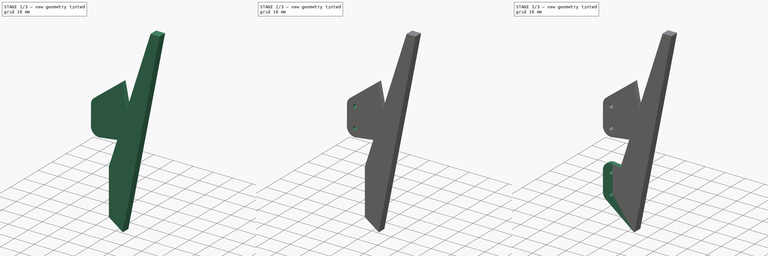
[diagram: build sequence overview — one tinted view per stage of 3, left to right]
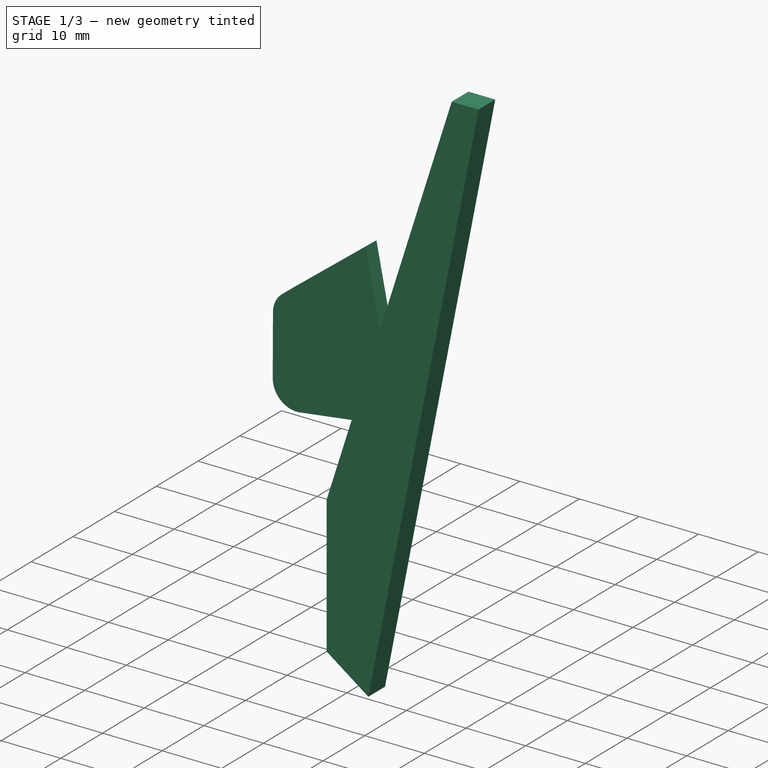
[diagram: stage 1 of 3 — iso view after this stage's code; geometry added in this stage tinted green]
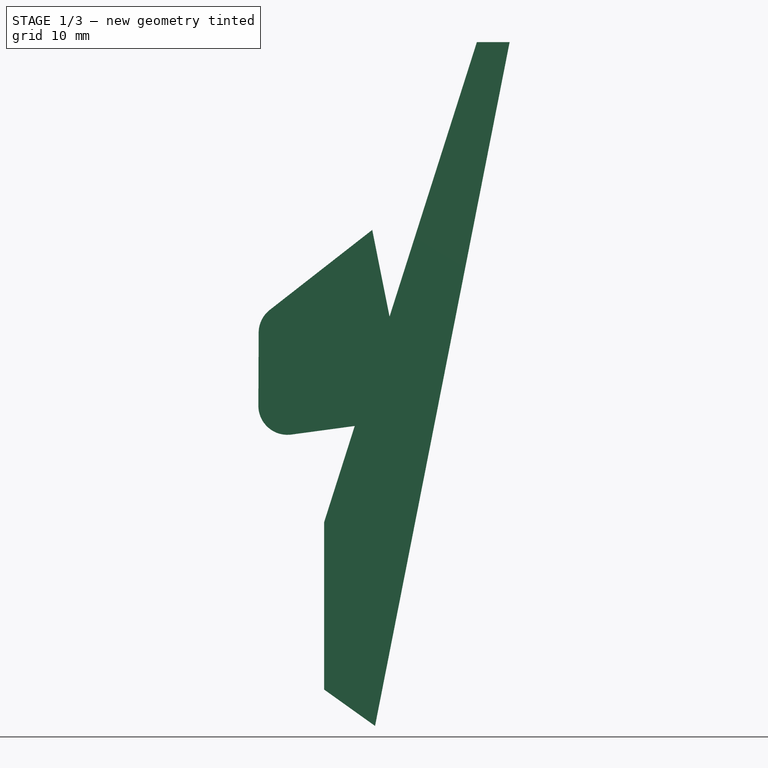
[diagram: stage 1 of 3 — front view after this stage's code; geometry added in this stage tinted green]
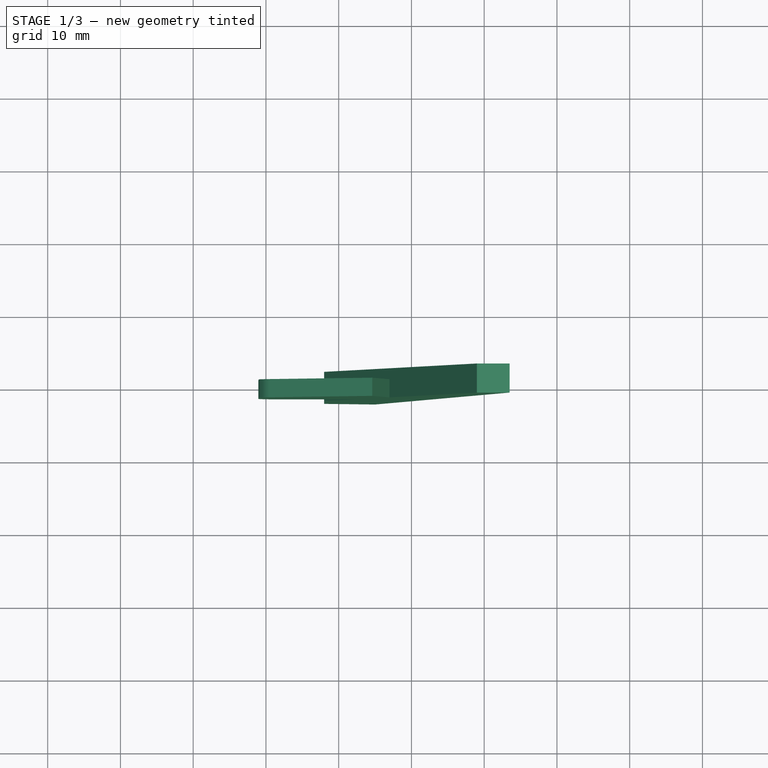
[diagram: stage 1 of 3 — top view after this stage's code; geometry added in this stage tinted green]
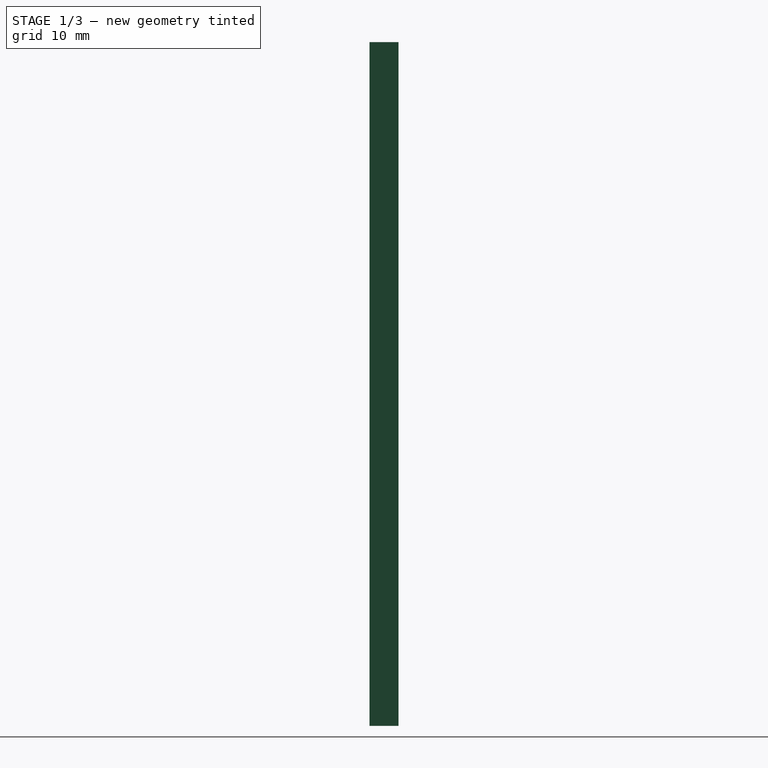
[diagram: stage 1 of 3 — right view after this stage's code; geometry added in this stage tinted green]
FCSTD DOCUMENT  (FreeCAD 0.14R3700 (Git))
Label: patte centrale b
License: CC-BY 3.0
LicenseURL: http://creativecommons.org/licenses/by/3.0/
objects: Part::Feature×10, Sketcher::SketchObject×6, PartDesign::Pad×3, PartDesign::Pocket×3, PartDesign::Fillet×2
note: 30 computed .brp shape members not serialized (recipe doc carries the construction recipe); baked Part::Feature solids carry a one-line shape summary decoded from their .brp

FEATURE [PartDesign::Pad] Pad005
  Length = 2.5
  Length2 = 100
  Placement = pos=(43,-2,9) rot=(-1,0,0;1.5708rad)
  Sketch = -> Sketch008
  Type = 0
FEATURE [Part::Feature] Fillet_solid  label="Fillet (Solid)"
  Placement = pos=(43,-2,9) rot=(-1,0,0;1.5708rad)
  shape: bbox 21.06 x 2.5 x 28.65 mm, 18 faces (baked)
FEATURE [Part::Feature] Fillet001_solid  label="Fillet001 (Solid)"
  Placement = pos=(43,-2,9) rot=(-1,0,0;1.5708rad)
  shape: bbox 21.16 x 2.5 x 28.5 mm, 18 faces (baked)
FEATURE [Part::Feature] Fillet_solid001  label="Fillet (Solid)001"
  Placement = pos=(43,-2,9) rot=(-1,0,0;1.5708rad)
  shape: bbox 21.06 x 2.5 x 28.65 mm, 18 faces (baked)
FEATURE [Part::Feature] Fillet001_solid001  label="Fillet001 (Solid)001"
  Placement = pos=(43,-2,9) rot=(-1,0,0;1.5708rad)
  shape: bbox 21.16 x 2.5 x 28.5 mm, 18 faces (baked)
FEATURE [Part::Feature] Fillet002
  Placement = pos=(43,-2,9) rot=(-1,0,0;1.5708rad)
  shape: bbox 21.06 x 2.5 x 28.65 mm, 18 faces (baked)
FEATURE [Part::Feature] Fillet001001  label="Fillet003"
  Placement = pos=(43,-2,9) rot=(-1,0,0;1.5708rad)
  shape: bbox 21.16 x 2.5 x 28.5 mm, 18 faces (baked)
FEATURE [Part::Feature] Fillet_solid002  label="Fillet (Solid)002"
  Placement = pos=(43,-2,9) rot=(-1,0,0;1.5708rad)
  shape: bbox 21.06 x 2.5 x 28.65 mm, 18 faces (baked)
FEATURE [Part::Feature] Fillet001_solid002  label="Fillet001 (Solid)002"
  Placement = pos=(43,-2,9) rot=(-1,0,0;1.5708rad)
  shape: bbox 21.16 x 2.5 x 28.5 mm, 18 faces (baked)
FEATURE [Part::Feature] Fillet_solid001001  label="Fillet (Solid)003"
  Placement = pos=(43,-2,9) rot=(-1,0,0;1.5708rad)
  shape: bbox 21.06 x 2.5 x 28.65 mm, 18 faces (baked)
FEATURE [Part::Feature] Fillet001_solid001001  label="Fillet001 (Solid)003"
  Placement = pos=(43,-2,9) rot=(-1,0,0;1.5708rad)
  shape: bbox 21.16 x 2.5 x 28.5 mm, 18 faces (baked)
FEATURE [Sketcher::SketchObject] Sketch013
  Placement = pos=(43,-2,9) rot=(-1,0,0;1.5708rad)
  sketch-geometry (5):
    g0: LineSegment StartX=65 StartY=29 StartZ=0 EndX=65 EndY=6 EndZ=0
    g1: LineSegment StartX=65 StartY=6 StartZ=0 EndX=86 EndY=-60 EndZ=0
    g2: LineSegment StartX=86 StartY=-60 StartZ=0 EndX=90.5 EndY=-60 EndZ=0
    g3: LineSegment StartX=90.5 StartY=-60 StartZ=0 EndX=72 EndY=34 EndZ=0
    g4: LineSegment StartX=72 StartY=34 StartZ=0 EndX=65 EndY=29 EndZ=0
  constraints (15):
    c: Coincident(g0,g1)
    c: Coincident(g1,g2)
    c: Coincident(g2,g3)
    c: Coincident(g3,g4)
    c: Coincident(g4,g0)
    c: Horizontal(g2)
    c: DistanceY(g-1,g2) = -60
    c: DistanceY(g-1,g0) = 29
    c: DistanceY(g-1,g3) = 34
    c: DistanceX(g2) = 4.5
    c: DistanceY(g1) = -66
    c: Vertical(g0)
    c: DistanceX(g-1,g3) = 72
    c: DistanceX(g-1,g0) = 65
    c: DistanceX(g-1,g1) = 86
FEATURE [PartDesign::Pad] Pad
  Length = 4
  Length2 = 100
  Placement = pos=(43,-2,9) rot=(-1,0,0;1.5708rad)
  Sketch = -> Sketch013
  Type = 0
FEATURE [Sketcher::SketchObject] Sketch
  Placement = pos=(43,2,9) rot=(-1,0,0;1.5708rad)
  Support = -> Pad [Face7]
  sketch-geometry (4):
    g0: ArcOfCircle CenterX=72 CenterY=3 CenterZ=0 NormalX=0 NormalY=0 NormalZ=1 Radius=4 StartAngle=0.295363 EndAngle=3.3585
    g1: ArcOfCircle CenterX=85 CenterY=-47 CenterZ=0 NormalX=0 NormalY=0 NormalZ=1 Radius=1.5 StartAngle=3.02034 EndAngle=6.96672
    g2: LineSegment StartX=68.0937 StartY=2.13914 StartZ=0 EndX=83.511 EndY=-46.8186 EndZ=0
    g3: LineSegment StartX=75.8268 StartY=4.16435 StartZ=0 EndX=86.163 EndY=-46.0527 EndZ=0
  constraints (11):
    c: Radius(g0) = 4
    c: Radius(g1) = 1.5
    c: Coincident(g2,g0)
    c: Coincident(g3,g0)
    c: Coincident(g2,g1)
    c: Coincident(g3,g1)
    c: DistanceY(g-1,g0) = 3
    c: DistanceX(g-1,g0) = 72
    c: DistanceY(g-1,g1) = -47
    c: DistanceX(g-1,g1) = 85
    c: Coincident(g0,g3)
FEATURE [PartDesign::Pocket] Pocket
  Length = 0.5
  Placement = pos=(43,-2,9) rot=(-1,0,0;1.5708rad)
  Sketch = -> Sketch
  Type = 0
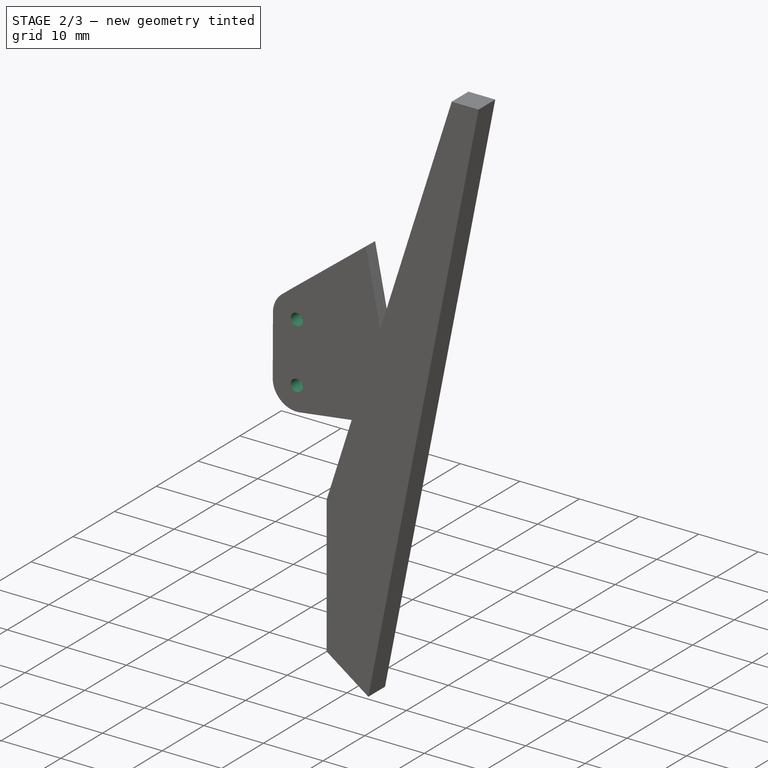
[diagram: stage 2 of 3 — iso view after this stage's code; geometry added in this stage tinted green]
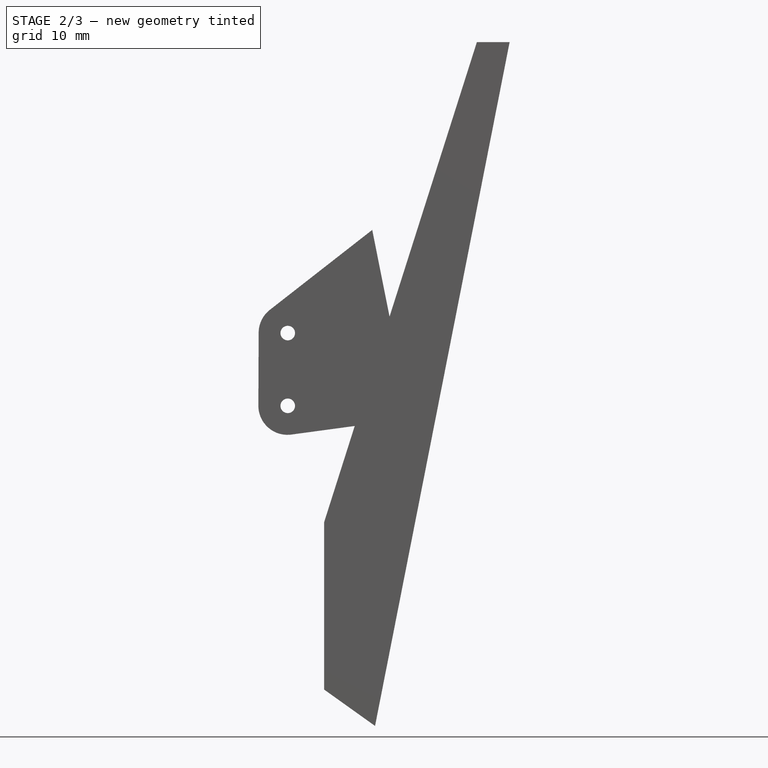
[diagram: stage 2 of 3 — front view after this stage's code; geometry added in this stage tinted green]
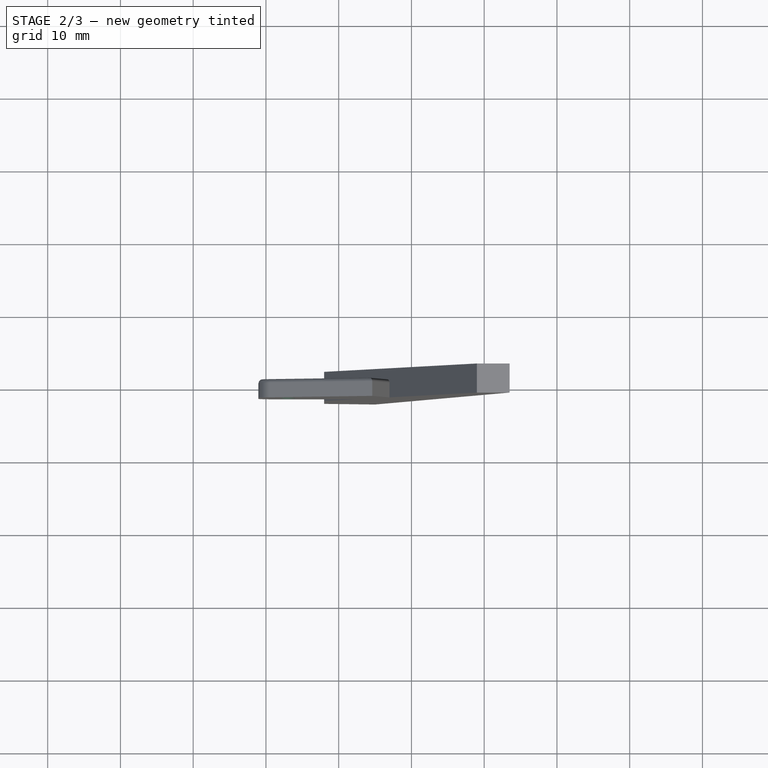
[diagram: stage 2 of 3 — top view after this stage's code; geometry added in this stage tinted green]
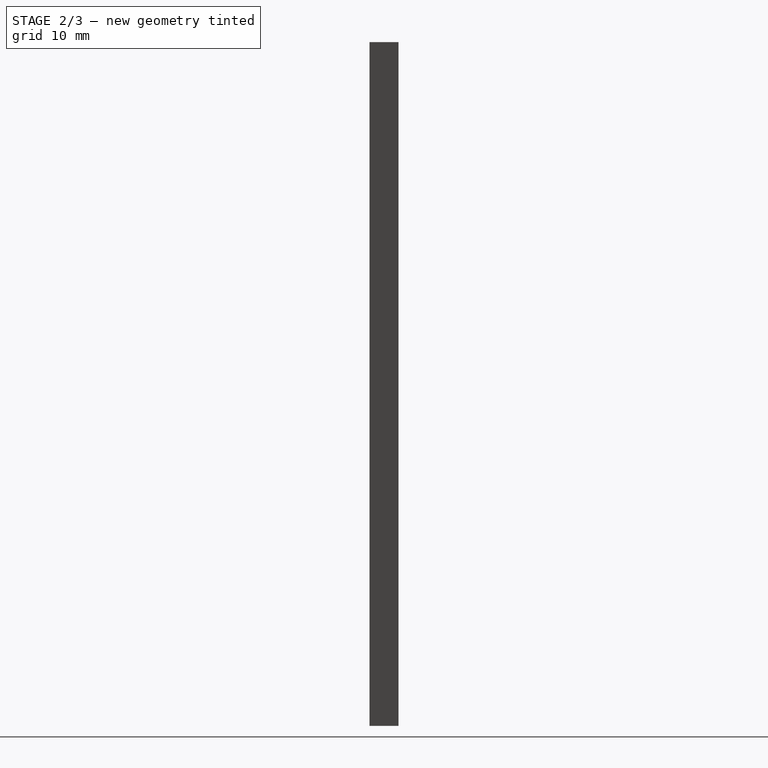
[diagram: stage 2 of 3 — right view after this stage's code; geometry added in this stage tinted green]
FEATURE [Sketcher::SketchObject] Sketch012
  Placement = pos=(43,0.5,9) rot=(-1,0,0;1.5708rad)
  Support = -> Pad005 [Face8]
  sketch-geometry (2):
    g0: Circle CenterX=60 CenterY=-20 CenterZ=0 NormalX=0 NormalY=0 NormalZ=1 Radius=1
    g1: Circle CenterX=60 CenterY=-10 CenterZ=0 NormalX=0 NormalY=0 NormalZ=1 Radius=1
  constraints (6):
    c: DistanceY(g-1,g1) = -10
    c: DistanceX(g-1,g1) = 60
    c: DistanceX(g-1,g0) = 60
    c: DistanceY(g-1,g0) = -20
    c: Radius(g1) = 1
    c: Radius(g0) = 1
FEATURE [PartDesign::Pocket] Pocket003
  Length = 3
  Placement = pos=(43,-2,9) rot=(-1,0,0;1.5708rad)
  Sketch = -> Sketch012
  Type = 0
FEATURE [PartDesign::Fillet] Fillet001
  Base = -> Pocket003 [Edge4,Edge7,Edge10,Edge16,Edge17,Edge18,Edge19,Edge20]
  Placement = pos=(43,-2,9) rot=(-1,0,0;1.5708rad)
  Radius = 0.5
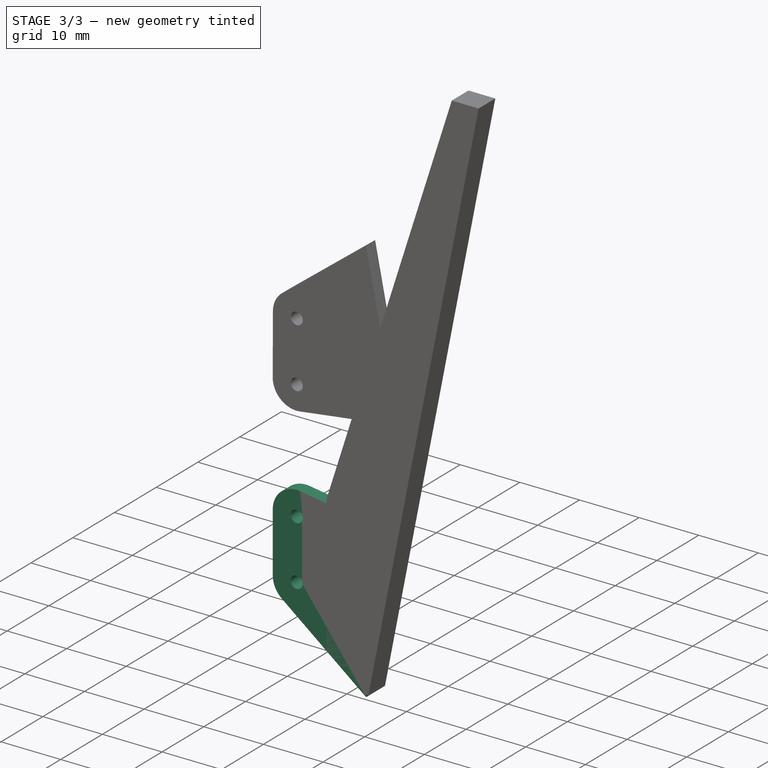
[diagram: stage 3 of 3 — iso view after this stage's code; geometry added in this stage tinted green]
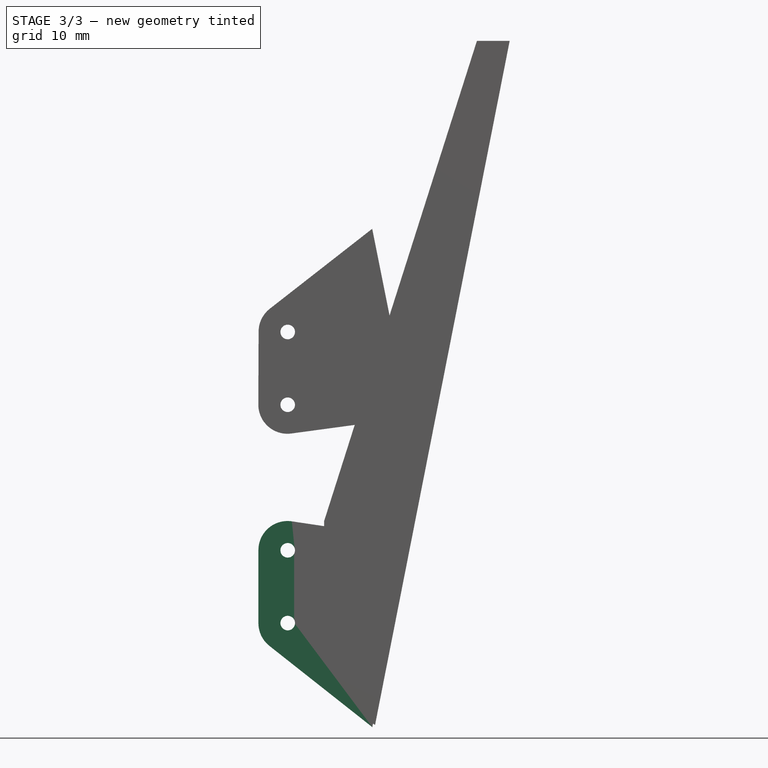
[diagram: stage 3 of 3 — front view after this stage's code; geometry added in this stage tinted green]
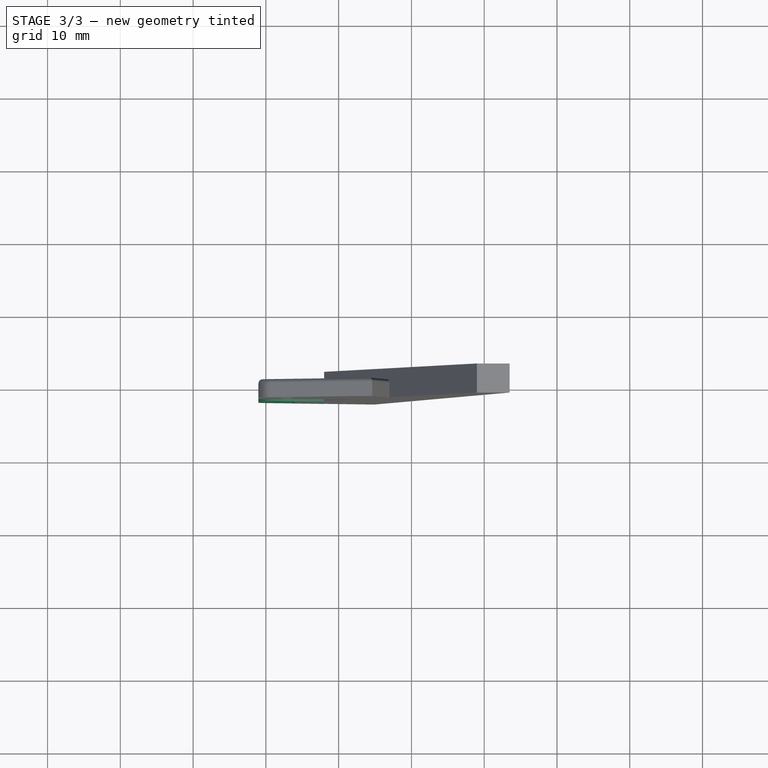
[diagram: stage 3 of 3 — top view after this stage's code; geometry added in this stage tinted green]
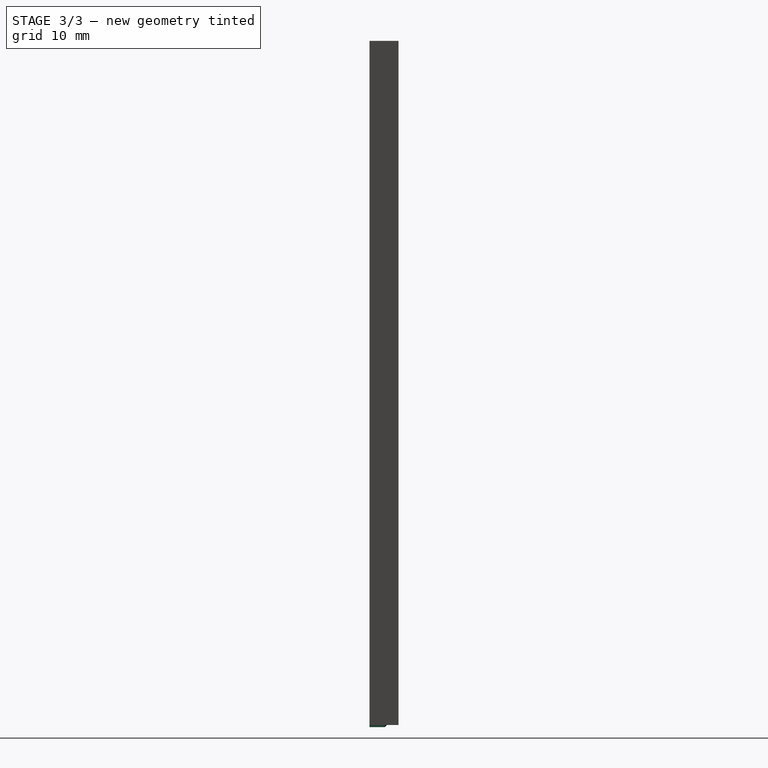
[diagram: stage 3 of 3 — right view after this stage's code; geometry added in this stage tinted green]
FEATURE [Sketcher::SketchObject] Sketch006
  Placement = pos=(43,-2,9) rot=(-1,0,0;1.5708rad)
  sketch-geometry (6):
    g0: LineSegment StartX=71.6243 StartY=34.2972 StartZ=0 EndX=57.4953 EndY=23.1398 EndZ=0
    g1: LineSegment StartX=55.9743 StartY=20.0001 StartZ=0 EndX=55.9754 EndY=9.97567 EndZ=0
    g2: LineSegment StartX=60.5651 StartY=6.01984 StartZ=0 EndX=76.7074 EndY=8.42585 EndZ=0
    g3: LineSegment StartX=76.7074 StartY=8.42585 StartZ=0 EndX=71.6243 EndY=34.2972 EndZ=0
    g4: ArcOfCircle CenterX=59.9743 CenterY=20.0006 CenterZ=0 NormalX=0 NormalY=0 NormalZ=1 Radius=4 StartAngle=2.23921 EndAngle=3.14171
    g5: ArcOfCircle CenterX=59.9754 CenterY=9.97613 CenterZ=0 NormalX=0 NormalY=0 NormalZ=1 Radius=4 StartAngle=3.14171 EndAngle=4.86035
  constraints (2):
    c: Coincident(g2,g3)
    c: Coincident(g3,g0)
FEATURE [Sketcher::SketchObject] Sketch008
  Placement = pos=(43,-2,9) rot=(-1,0,0;1.5708rad)
  sketch-geometry (6):
    g0: LineSegment StartX=71.6111 StartY=-34.1804 StartZ=0 EndX=57.5401 EndY=-23.1939 EndZ=0
    g1: LineSegment StartX=56.0018 StartY=-20.057 StartZ=0 EndX=55.962 EndY=-10.0299 EndZ=0
    g2: LineSegment StartX=60.4985 StartY=-6.0502 StartZ=0 EndX=76.7887 EndY=-8.25507 EndZ=0
    g3: LineSegment StartX=76.7887 StartY=-8.25507 StartZ=0 EndX=71.6111 EndY=-34.1804 EndZ=0
    g4: ArcOfCircle CenterX=59.962 CenterY=-10.0141 CenterZ=0 NormalX=0 NormalY=0 NormalZ=1 Radius=4 StartAngle=1.43626 EndAngle=3.14556
    g5: ArcOfCircle CenterX=60.0018 CenterY=-20.0411 CenterZ=0 NormalX=0 NormalY=0 NormalZ=1 Radius=4 StartAngle=3.14556 EndAngle=4.04947
  constraints (2):
    c: Coincident(g2,g3)
    c: Coincident(g3,g0)
FEATURE [PartDesign::Pad] Pad004
  Length = 2.5
  Length2 = 100
  Placement = pos=(43,-2,9) rot=(-1,0,0;1.5708rad)
  Sketch = -> Sketch006
  Type = 0
FEATURE [Sketcher::SketchObject] Sketch011
  Placement = pos=(43,0.5,9) rot=(-1,0,0;1.5708rad)
  Support = -> Pad004 [Face8]
  sketch-geometry (2):
    g0: Circle CenterX=60 CenterY=20 CenterZ=0 NormalX=0 NormalY=0 NormalZ=1 Radius=1
    g1: Circle CenterX=60 CenterY=10 CenterZ=0 NormalX=0 NormalY=0 NormalZ=1 Radius=1
  constraints (6):
    c: DistanceX(g-1,g0) = 60
    c: DistanceX(g-1,g1) = 60
    c: DistanceY(g-1,g1) = 10
    c: DistanceY(g-1,g0) = 20
    c: Radius(g0) = 1
    c: Radius(g1) = 1
FEATURE [PartDesign::Pocket] Pocket002
  Length = 3
  Placement = pos=(43,-2,9) rot=(-1,0,0;1.5708rad)
  Sketch = -> Sketch011
  Type = 0
FEATURE [PartDesign::Fillet] Fillet
  Base = -> Pocket002 [Edge4,Edge7,Edge10,Edge16,Edge17,Edge18,Edge19,Edge20]
  Placement = pos=(43,-2,9) rot=(-1,0,0;1.5708rad)
  Radius = 0.5
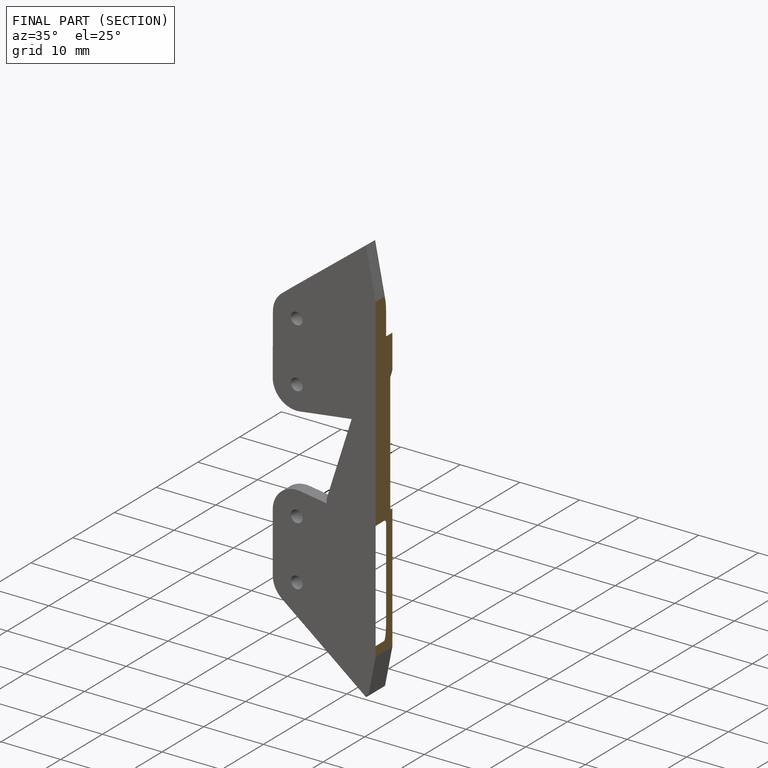
[diagram: finished part — half-section view (interior)]
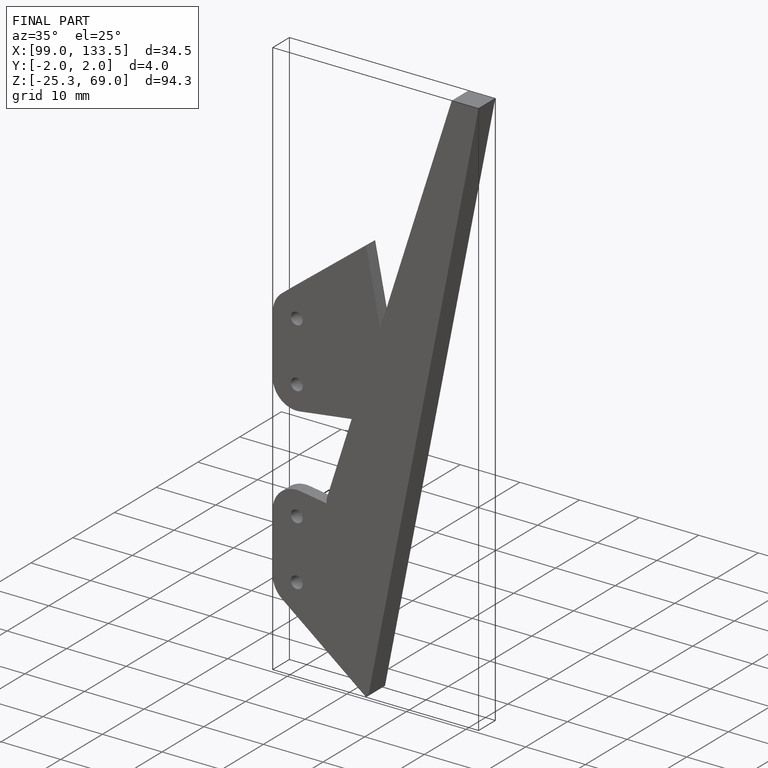
[diagram: finished part — iso view with bounding-box wireframe]
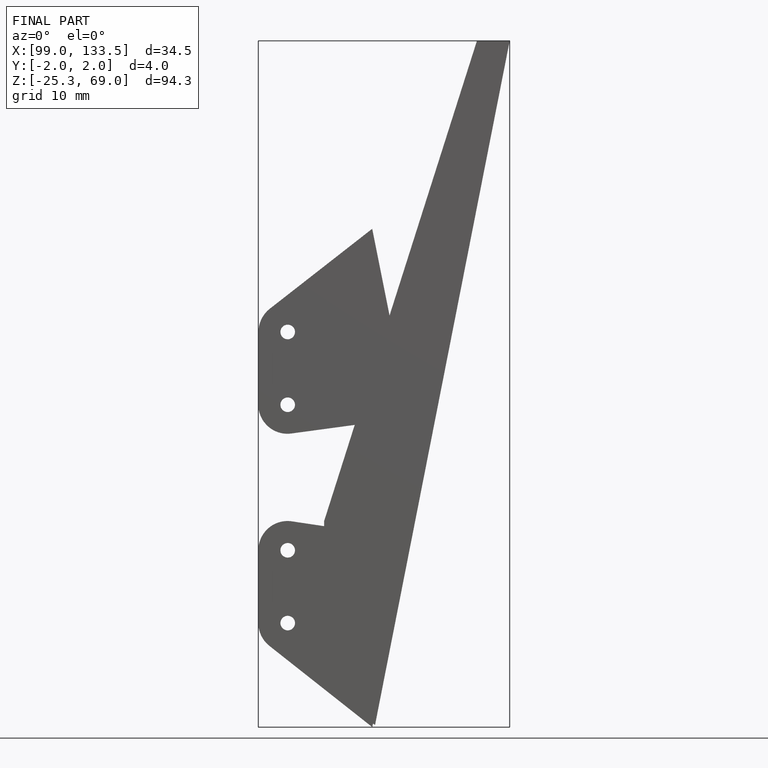
[diagram: finished part — front view with bounding-box wireframe]
